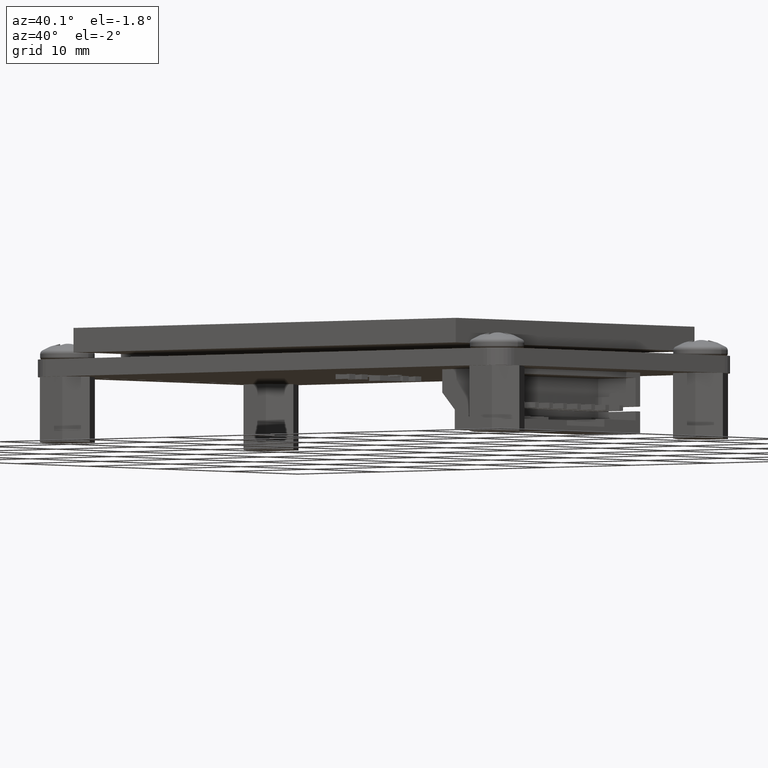
[diagram: clean part render]
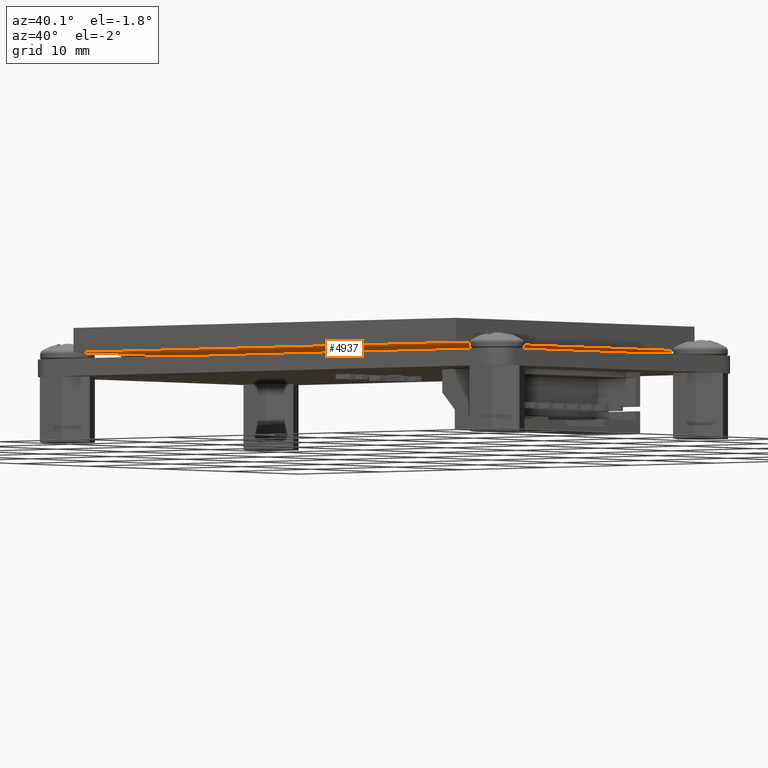
[diagram: same view with one face highlighted and labeled with its STEP entity id]
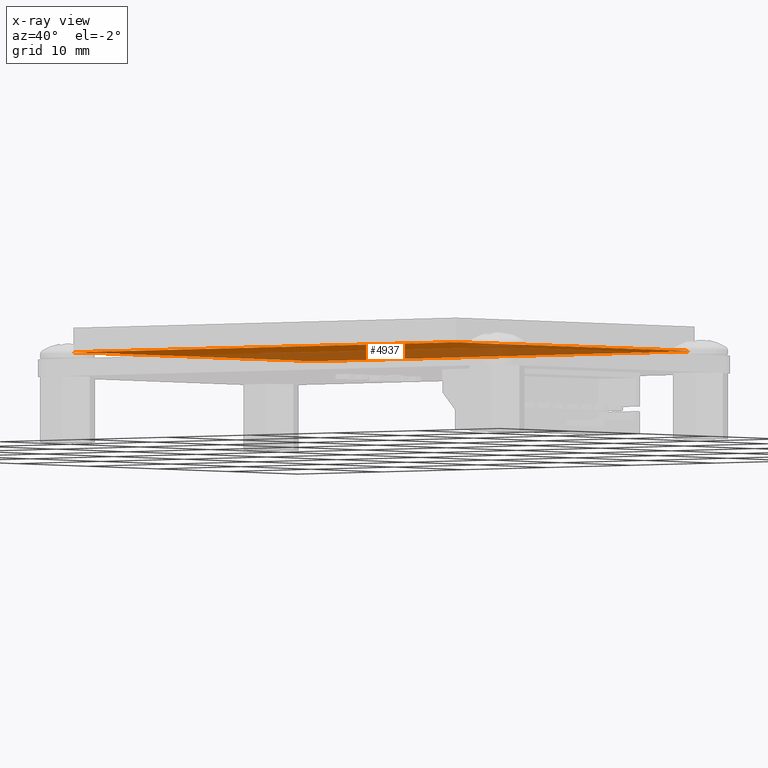
[diagram: x-ray of the same camera — body ghosted, the highlighted face saturated]
A machine part, auxiliary view. The second image highlights one B-rep face of the part: STEP entity #4937.
The next image is the same camera in x-ray: the body ghosted, the highlighted face saturated — about 56% of this face is hidden behind the body in this view.
In plain terms, the highlighted planar face has unit normal (0, 0, 1).
Its self-contained STEP definition (entity closure, byte-faithful):
#4092=DIRECTION('',(0.E0,1.E0,0.E0));
#4093=VECTOR('',#4092,4.480164618773E-1);
#4094=CARTESIAN_POINT('',(1.45E1,-2.548E1,0.E0));
#4095=LINE('',#4094,#4093);
#4099=DIRECTION('',(1.E0,0.E0,0.E0));
#4100=VECTOR('',#4099,2.5E0);
#4101=CARTESIAN_POINT('',(1.45E1,-2.548E1,0.E0));
#4102=LINE('',#4101,#4100);
#4106=DIRECTION('',(0.E0,1.E0,0.E0));
#4107=VECTOR('',#4106,4.583E1);
#4108=CARTESIAN_POINT('',(1.7E1,-2.548E1,0.E0));
#4109=LINE('',#4108,#4107);
#4113=DIRECTION('',(-1.E0,0.E0,0.E0));
#4114=VECTOR('',#4113,3.4E1);
#4115=CARTESIAN_POINT('',(1.7E1,2.035E1,0.E0));
#4116=LINE('',#4115,#4114);
#4120=DIRECTION('',(0.E0,-1.E0,0.E0));
#4121=VECTOR('',#4120,4.583E1);
#4122=CARTESIAN_POINT('',(-1.7E1,2.035E1,0.E0));
#4123=LINE('',#4122,#4121);
#4127=DIRECTION('',(1.E0,0.E0,0.E0));
#4128=VECTOR('',#4127,2.5E0);
#4129=CARTESIAN_POINT('',(-1.7E1,-2.548E1,0.E0));
#4130=LINE('',#4129,#4128);
#4134=DIRECTION('',(0.E0,1.E0,0.E0));
#4135=VECTOR('',#4134,4.480164618773E-1);
#4136=CARTESIAN_POINT('',(-1.45E1,-2.548E1,0.E0));
#4137=LINE('',#4136,#4135);
#4141=DIRECTION('',(-1.E0,0.E0,0.E0));
#4142=VECTOR('',#4141,2.9E1);
#4143=CARTESIAN_POINT('',(1.45E1,-2.503198353812E1,0.E0));
#4144=LINE('',#4143,#4142);
#4786=CARTESIAN_POINT('',(-1.7E1,2.035E1,0.E0));
#4787=CARTESIAN_POINT('',(-1.7E1,-2.548E1,0.E0));
#4788=VERTEX_POINT('',#4786);
#4789=VERTEX_POINT('',#4787);
#4790=CARTESIAN_POINT('',(1.7E1,-2.548E1,0.E0));
#4791=CARTESIAN_POINT('',(1.7E1,2.035E1,0.E0));
#4792=VERTEX_POINT('',#4790);
#4793=VERTEX_POINT('',#4791);
#4850=CARTESIAN_POINT('',(1.45E1,-2.548E1,0.E0));
#4851=CARTESIAN_POINT('',(1.45E1,-2.503198353812E1,0.E0));
#4852=VERTEX_POINT('',#4850);
#4853=VERTEX_POINT('',#4851);
#4854=CARTESIAN_POINT('',(-1.45E1,-2.503198353812E1,0.E0));
#4855=VERTEX_POINT('',#4854);
#4856=CARTESIAN_POINT('',(-1.45E1,-2.548E1,0.E0));
#4857=VERTEX_POINT('',#4856);
#4914=CARTESIAN_POINT('',(0.E0,0.E0,0.E0));
#4915=DIRECTION('',(0.E0,0.E0,1.E0));
#4916=DIRECTION('',(1.E0,0.E0,0.E0));
#4917=AXIS2_PLACEMENT_3D('',#4914,#4915,#4916);
#4918=PLANE('',#4917);
#4920=ORIENTED_EDGE('',*,*,#4919,.F.);
#4922=ORIENTED_EDGE('',*,*,#4921,.T.);
#4924=ORIENTED_EDGE('',*,*,#4923,.T.);
#4926=ORIENTED_EDGE('',*,*,#4925,.T.);
#4928=ORIENTED_EDGE('',*,*,#4927,.T.);
#4930=ORIENTED_EDGE('',*,*,#4929,.T.);
#4932=ORIENTED_EDGE('',*,*,#4931,.T.);
#4934=ORIENTED_EDGE('',*,*,#4933,.F.);
#4935=EDGE_LOOP('',(#4920,#4922,#4924,#4926,#4928,#4930,#4932,#4934));
#4936=FACE_OUTER_BOUND('',#4935,.F.);
#4937=ADVANCED_FACE('',(#4936),#4918,.F.);
#4919=EDGE_CURVE('',#4852,#4853,#4095,.T.);
#4921=EDGE_CURVE('',#4852,#4792,#4102,.T.);
#4923=EDGE_CURVE('',#4792,#4793,#4109,.T.);
#4925=EDGE_CURVE('',#4793,#4788,#4116,.T.);
#4927=EDGE_CURVE('',#4788,#4789,#4123,.T.);
#4929=EDGE_CURVE('',#4789,#4857,#4130,.T.);
#4931=EDGE_CURVE('',#4857,#4855,#4137,.T.);
#4933=EDGE_CURVE('',#4853,#4855,#4144,.T.);